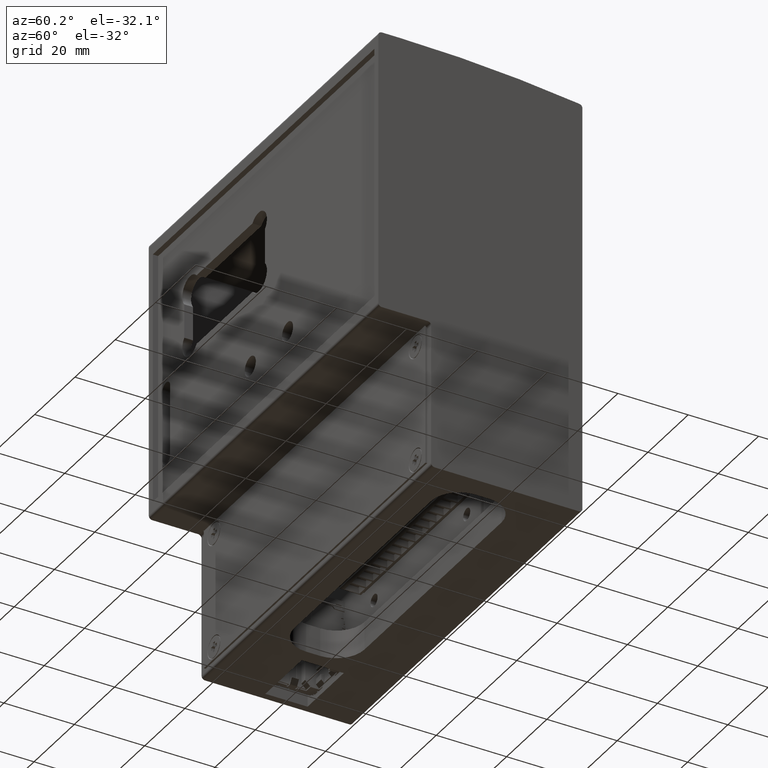
[diagram: clean part render]
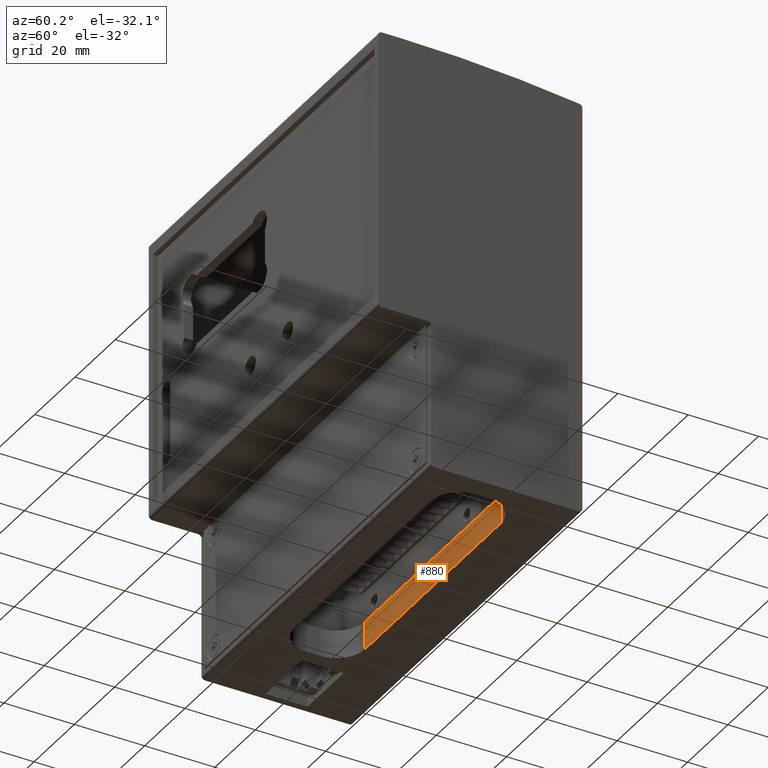
[diagram: same view with one face highlighted and labeled with its STEP entity id]
A machine part, auxiliary view. The second image highlights one B-rep face of the part: STEP entity #880.
In plain terms, the highlighted planar face has unit normal (-0, 1, 0).
Its self-contained STEP definition (entity closure, byte-faithful):
#822=CARTESIAN_POINT('',(-86.957093014422583,-118.589066365486590,79.500000000000000));
#823=VERTEX_POINT('',#822);
#832=CARTESIAN_POINT('',(-86.957093014422583,-126.589066365486590,79.500000000000000));
#833=VERTEX_POINT('',#832);
#841=CARTESIAN_POINT('',(-86.957093014422583,-126.589066365486590,79.500000000000000));
#842=DIRECTION('',(0.0,1.0,0.0));
#843=VECTOR('',#842,8.0);
#844=LINE('',#841,#843);
#845=EDGE_CURVE('',#833,#823,#844,.T.);
#850=CARTESIAN_POINT('',(-86.957093014422583,-126.589066365486590,79.500000000000000));
#851=DIRECTION('',(-1.0,0.0,0.0));
#852=DIRECTION('',(0.0,0.0,1.0));
#853=AXIS2_PLACEMENT_3D('',#850,#851,#852);
#854=PLANE('',#853);
#855=CARTESIAN_POINT('',(-86.957093014422583,-118.589066365486590,11.500000000000000));
#856=VERTEX_POINT('',#855);
#857=CARTESIAN_POINT('',(-86.957093014422583,-118.589066365486590,79.500000000000000));
#858=DIRECTION('',(0.0,0.0,-1.0));
#859=VECTOR('',#858,68.0);
#860=LINE('',#857,#859);
#861=EDGE_CURVE('',#823,#856,#860,.T.);
#862=ORIENTED_EDGE('',*,*,#861,.F.);
#863=ORIENTED_EDGE('',*,*,#845,.F.);
#864=CARTESIAN_POINT('',(-86.957093014422583,-126.589066365486590,11.500000000000000));
#865=VERTEX_POINT('',#864);
#866=CARTESIAN_POINT('',(-86.957093014422583,-126.589066365486590,11.500000000000000));
#867=DIRECTION('',(0.0,0.0,1.0));
#868=VECTOR('',#867,68.0);
#869=LINE('',#866,#868);
#870=EDGE_CURVE('',#865,#833,#869,.T.);
#871=ORIENTED_EDGE('',*,*,#870,.F.);
#872=CARTESIAN_POINT('',(-86.957093014422583,-126.589066365486590,11.500000000000000));
#873=DIRECTION('',(0.0,1.0,0.0));
#874=VECTOR('',#873,8.0);
#875=LINE('',#872,#874);
#876=EDGE_CURVE('',#865,#856,#875,.T.);
#877=ORIENTED_EDGE('',*,*,#876,.T.);
#878=EDGE_LOOP('',(#862,#863,#871,#877));
#879=FACE_OUTER_BOUND('',#878,.T.);
#880=ADVANCED_FACE('',(#879),#854,.F.);